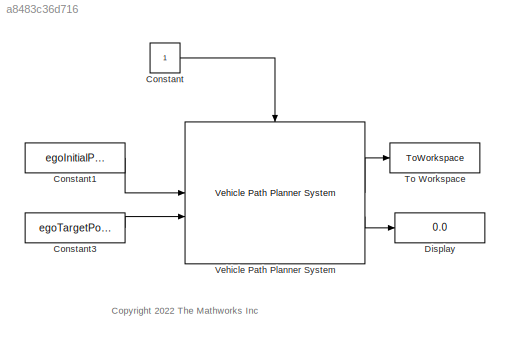
MODEL slx_a8483c36d716
KIND model
CONFIG AbsTol = auto
CONFIG EnableMultiTasking = off
CONFIG FixedStep = auto
CONFIG MaxStep = auto
CONFIG MinStep = auto
CONFIG RelTol = 1e-3
CONFIG SampleTimeConstraint = Unconstrained
CONFIG SolverName = VariableStepAuto
CONFIG StartTime = 0.0
CONFIG StopTime = 0.1
BLOCK [Constant] Constant
BLOCK [Constant] Constant1
  Value = egoInitialPose
  VectorParams1D = off
BLOCK [Constant] Constant3
  Value = egoTargetPose
  VectorParams1D = off
BLOCK [Display] Display
  Decimation = 1
BLOCK [ToWorkspace] To Workspace
  FixptAsFi = on
  MaxDataPoints = inf
  SampleTime = -1
  VariableName = simout
BLOCK [Reference] Vehicle Path Planner System  REF=mpcadaslib/Vehicle Path Planner System
  LibrarySourceBlock = mpclib/Automated Driving/Vehicle Path Planner System
  SourceBlock = mpcadaslib/Vehicle Path Planner System
  SourceType = Vehicle Path Planner (VPP) system
ANNOTATION (root): <copyright redacted>
LINE Constant1:1 -> Vehicle Path Planner System:1
LINE Constant3:1 -> Vehicle Path Planner System:2
LINE Constant:1 -> Vehicle Path Planner System:enable
LINE Vehicle Path Planner System:1 -> To Workspace:1
LINE Vehicle Path Planner System:2 -> Display:1
